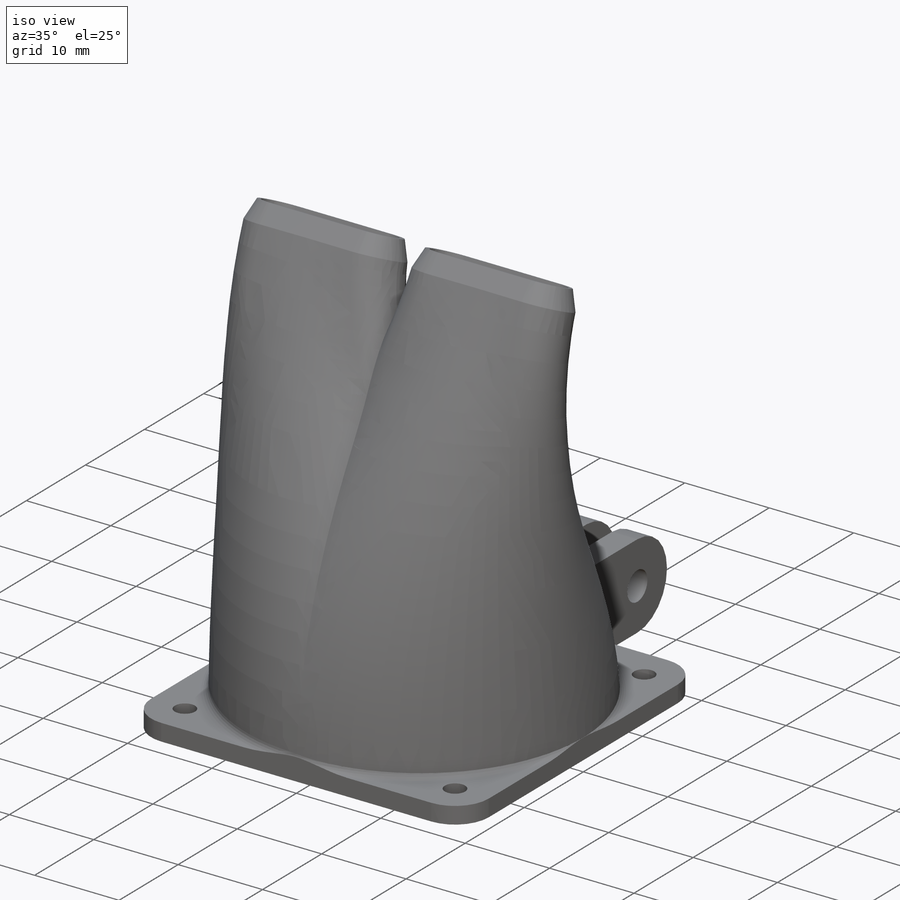
[diagram: iso view]
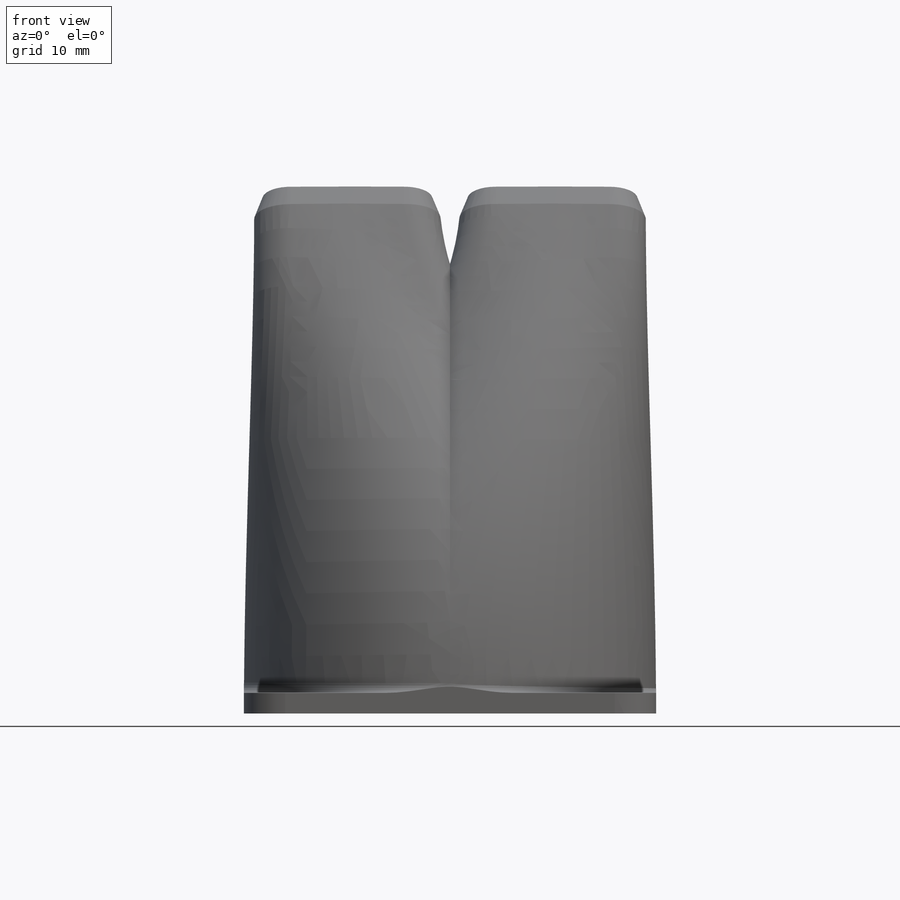
[diagram: front view]
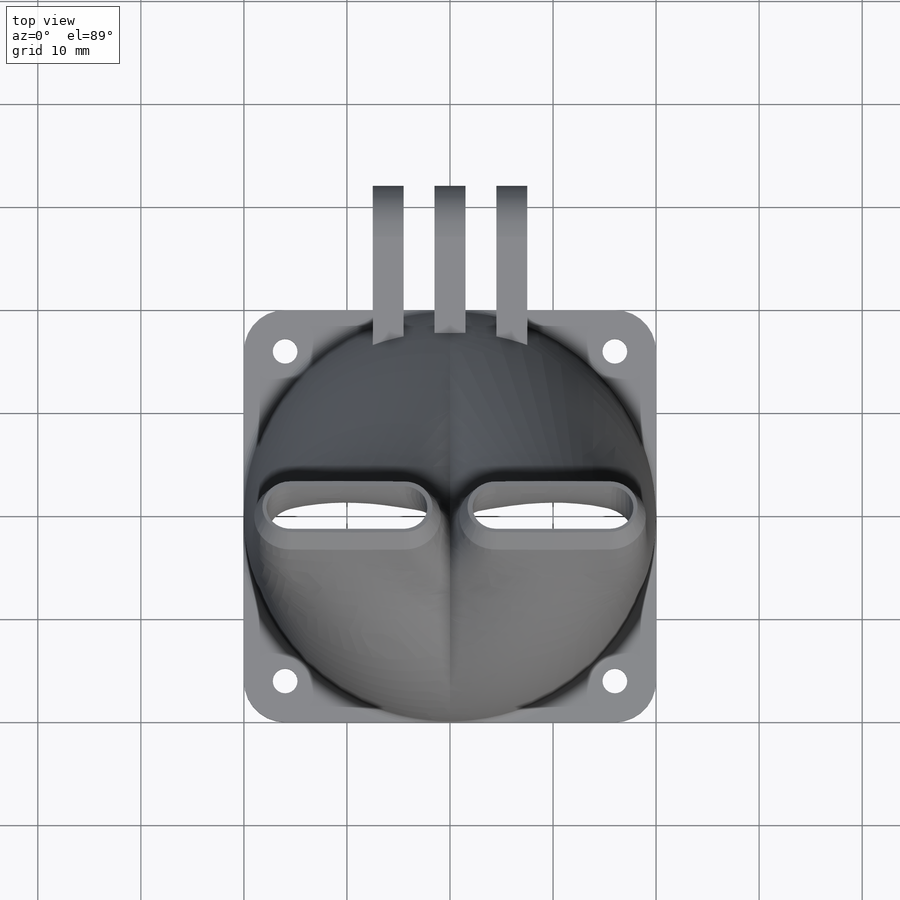
[diagram: top view]
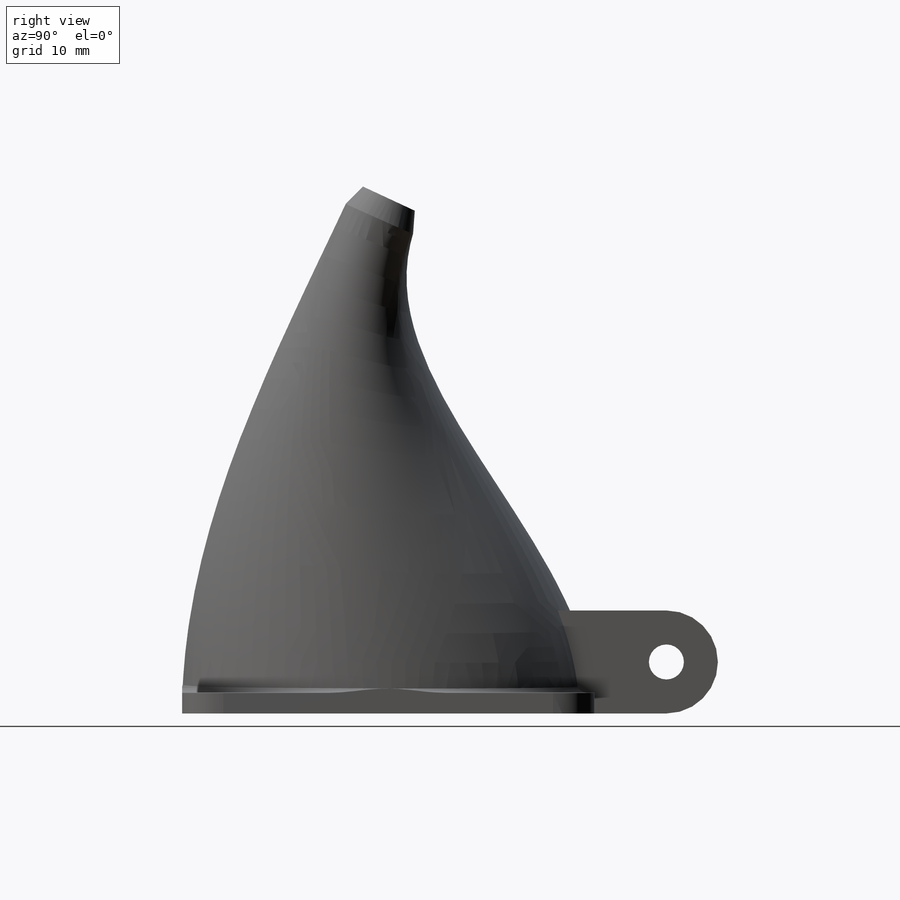
[diagram: right view]
SOLIDWORKS PART (.sldprt)
format: sldprt  version: not decoded by parser v0  size: 888,832 bytes
history: native  units: mm
features: sketch x7, chamfer x3, plane x2, extrude x2, material x1, shell x1, fillet x1, cut_extrude x1 (+12 scaffold rows collapsed)
feature tree (30):
  scaffold x12  (default folders/planes/origin — collapsed)
  material  "Material <not specified>"
  plane  "Plane1"  Offset=50mm
  plane  "Plane2"
  sketch  "Sketch1"  dims[c1.D3=2.4mm c1.D5=40.0mm c1.D6=4.0mm c1.D1=~82.470218mm c1.D2=~99.631651mm c2.D1=40.0mm c2.D2=40.0mm c2.D4=32.0mm c2.D7=1.2mm]
  sketch  "Sketch3"  dims[c1.D1=7.0mm c1.D2=11.0mm c1.D3=20.0mm c1.ModelUUID=0.0mm c1.UUID=0.0mm c2.ModelUUID=0.0mm]
  sketch  "Sketch3<5>"
  shell  "Shell1"  Thickness=1.2mm
  sketch  "Sketch4"  dims[c1.D1=4.0mm c2.D1=0.5mm]
  sketch  "Sketch5"
  extrude  "Flange"  Depth=2mm
  fillet  "Fillet1"  Radius=1mm
  chamfer  "Chamfer3"  Distance=0.5mm Angle=45deg
  sketch  "Sketch6"  dims[c1.D1=~9.844611mm c1.D2=~2.70354mm c2.D1=~10.258746mm c2.D2=~2.553832mm c3.D1=3.0mm c3.D2=10.0mm c3.D3=~15.211789mm c3.D4=~3.297927mm c4.D3=~13.235656mm c4.D4=~3.692171mm c5.D3=3.0mm c5.D4=3.0mm c5.D5=10.0mm c5.D6=10.0mm c5.D7=3.0mm c5.D8=3.0mm]
  extrude  "Fingers"  Depth=12mm
  sketch  "Sketch7"  dims[D1=3.4mm]
  cut_extrude  "Ringer Rounds"  [1 undecoded]
  chamfer  "Chamfer4"  Distance=0.8mm Angle=70deg
  chamfer  "Chamfer5"  Distance=0.8mm Angle=70deg
decode coverage: 12 of 15 modeling features carry decoded parameters
note: ~ marks probable driven/reference dimensions
note: 1 parameter value undecoded
note: suppression state not decoded; provenance and decode notes live in map.json
